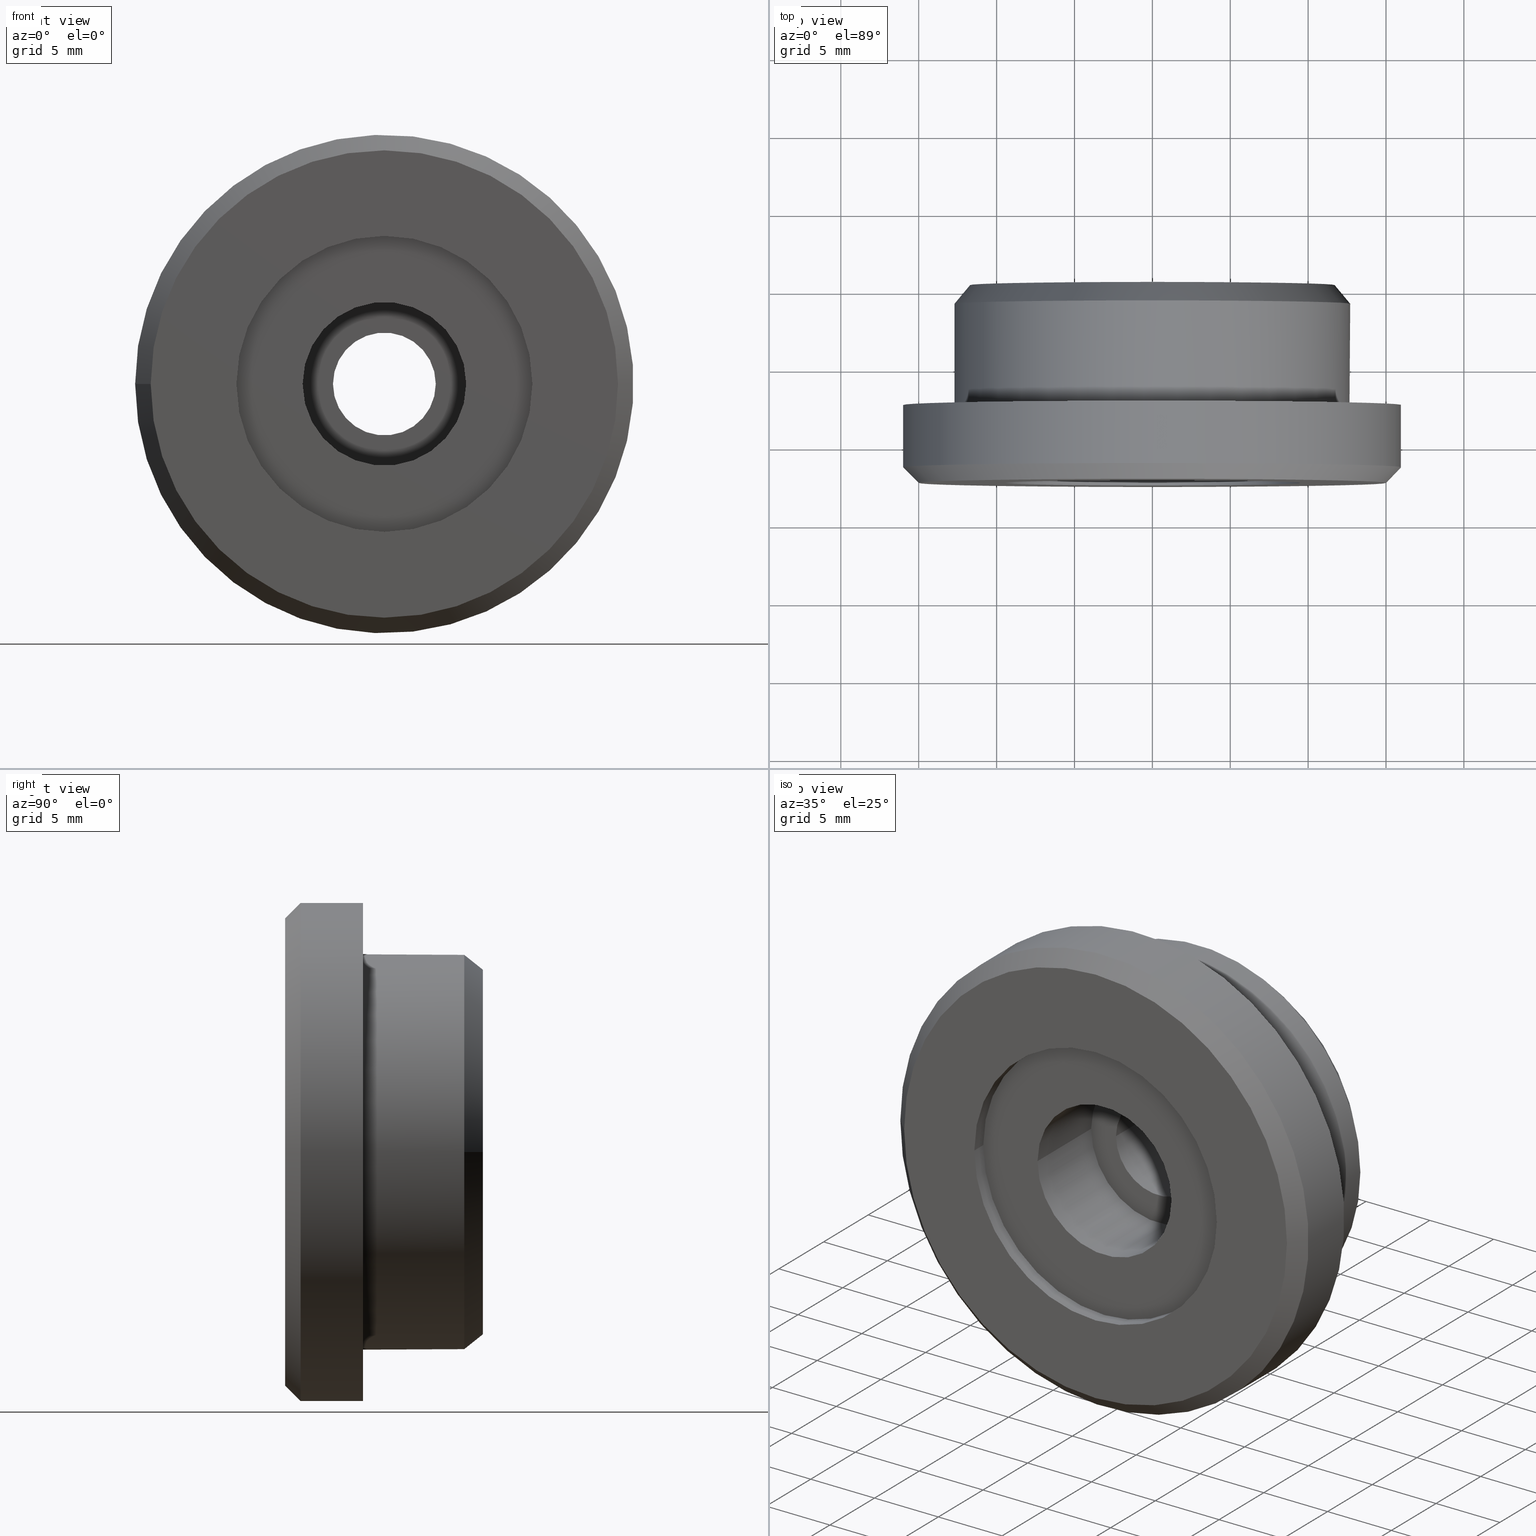
[diagram: canonical four-view strip — front | top / right | iso, engineering-drawing reading convention]
A machine part, canonical four-view strip (front | top / right | iso — engineering-drawing reading convention). The complete STEP part file that produces these views, byte-faithful:
ISO-10303-21;
HEADER;
FILE_DESCRIPTION (( 'STEP AP203' ),
    '1' );
FILE_NAME ('523755.STEP',
    '2024-11-01T08:20:52',
    ( 'Windows User' ),
    ( 'P R C' ),
    'SwSTEP 2.0',
    'SolidWorks 2020',
    '' );
FILE_SCHEMA (( 'CONFIG_CONTROL_DESIGN' ));
ENDSEC;

DATA;
#1 = EDGE_CURVE ( 'NONE', #7, #7, #230, .T. ) ;
#2 = CIRCLE ( 'NONE', #256, 6.499999999999999112 ) ;
#3 = CC_DESIGN_SECURITY_CLASSIFICATION ( #348, ( #205 ) ) ;
#4 = FACE_OUTER_BOUND ( 'NONE', #268, .T. ) ;
#5 = AXIS2_PLACEMENT_3D ( 'NONE', #332, #20, #184 ) ;
#6 = AXIS2_PLACEMENT_3D ( 'NONE', #321, #231, #261 ) ;
#7 = VERTEX_POINT ( 'NONE', #109 ) ;
#8 = ADVANCED_FACE ( 'NONE', ( #303, #338 ), #324, .T. ) ;
#9 = FACE_BOUND ( 'NONE', #354, .T. ) ;
#10 = ORIENTED_EDGE ( 'NONE', *, *, #259, .F. ) ;
#11 = DIRECTION ( 'NONE',  ( -3.414809992080329023E-17, 1.000000000000000000, 0.000000000000000000 ) ) ;
#12 = ORIENTED_EDGE ( 'NONE', *, *, #234, .F. ) ;
#13 = DIRECTION ( 'NONE',  ( 3.841661241090370459E-17, -1.000000000000000000, 4.268512490100414360E-18 ) ) ;
#14 = CARTESIAN_POINT ( 'NONE',  ( -9.500000000000076383, -12.40000000000007674, 0.000000000000000000 ) ) ;
#15 = ORIENTED_EDGE ( 'NONE', *, *, #148, .F. ) ;
#16 = CALENDAR_DATE ( 2024, 1, 11 ) ;
#17 = CC_DESIGN_PERSON_AND_ORGANIZATION_ASSIGNMENT ( #62, #172, ( #353 ) ) ;
#18 = CARTESIAN_POINT ( 'NONE',  ( 11.70000000000005436, 0.3000000000000158651, -5.122214988120266275E-18 ) ) ;
#19 = DIRECTION ( 'NONE',  ( -1.000000000000000000, -1.084202172485504681E-16, 0.000000000000000000 ) ) ;
#20 = DIRECTION ( 'NONE',  ( -3.414809992080329023E-17, 1.000000000000000000, 0.000000000000000000 ) ) ;
#21 = CARTESIAN_POINT ( 'NONE',  ( 8.499999999999964473, -11.39999999999996838, 0.000000000000000000 ) ) ;
#22 = APPROVAL_PERSON_ORGANIZATION ( #367, #116, #306 ) ;
#23 = DIRECTION ( 'NONE',  ( -3.414809992080329023E-17, 1.000000000000000000, 0.000000000000000000 ) ) ;
#24 = ADVANCED_FACE ( 'NONE', ( #102, #192 ), #244, .T. ) ;
#25 = CARTESIAN_POINT ( 'NONE',  ( -1.880790961315660451E-31, -11.40000000000000213, 0.000000000000000000 ) ) ;
#26 = AXIS2_PLACEMENT_3D ( 'NONE', #225, #311, #144 ) ;
#27 = PLANE ( 'NONE',  #123 ) ;
#28 = CARTESIAN_POINT ( 'NONE',  ( 1.707404996040190150E-16, -12.40000000000007674, 0.000000000000000000 ) ) ;
#29 = CIRCLE ( 'NONE', #76, 3.299999999999999822 ) ;
#30 = CARTESIAN_POINT ( 'NONE',  ( -6.499999999999999112, 0.3000000000000153100, 0.000000000000000000 ) ) ;
#31 = FACE_OUTER_BOUND ( 'NONE', #206, .T. ) ;
#32 = ORIENTED_EDGE ( 'NONE', *, *, #250, .T. ) ;
#33 = CARTESIAN_POINT ( 'NONE',  ( 1.084202172485501846E-16, -12.40000000000000213, 0.000000000000000000 ) ) ;
#34 = DIRECTION ( 'NONE',  ( -1.000000000000000000, 0.000000000000000000, 0.000000000000000000 ) ) ;
#35 = ADVANCED_FACE ( 'NONE', ( #156, #71 ), #302, .F. ) ;
#36 = VERTEX_POINT ( 'NONE', #95 ) ;
#37 = ORIENTED_EDGE ( 'NONE', *, *, #60, .F. ) ;
#38 = APPROVAL_ROLE ( '' ) ;
#39 = EDGE_LOOP ( 'NONE', ( #64 ) ) ;
#40 = CARTESIAN_POINT ( 'NONE',  ( 5.249999999999999112, -5.399999999999983480, 0.000000000000000000 ) ) ;
#41 = AXIS2_PLACEMENT_3D ( 'NONE', #28, #170, #319 ) ;
#42 = VERTEX_POINT ( 'NONE', #236 ) ;
#43 = DIRECTION ( 'NONE',  ( -1.000000000000000000, -3.336006684570783348E-17, 0.000000000000000000 ) ) ;
#44 = DIRECTION ( 'NONE',  ( -1.084202172485504681E-16, 1.000000000000000000, 0.000000000000000000 ) ) ;
#45 = FACE_OUTER_BOUND ( 'NONE', #356, .T. ) ;
#46 = EDGE_CURVE ( 'NONE', #226, #226, #151, .T. ) ;
#47 = CIRCLE ( 'NONE', #301, 11.70000000000005436 ) ;
#48 = SHAPE_DEFINITION_REPRESENTATION ( #298, #186 ) ;
#49 = DIRECTION ( 'NONE',  ( -3.414809992080329023E-17, 1.000000000000000000, 0.000000000000000000 ) ) ;
#50 = CYLINDRICAL_SURFACE ( 'NONE', #266, 12.69999999999999929 ) ;
#51 = DATE_TIME_ROLE ( 'creation_date' ) ;
#52 = ADVANCED_FACE ( 'NONE', ( #158, #45 ), #103, .T. ) ;
#53 = AXIS2_PLACEMENT_3D ( 'NONE', #168, #11, #314 ) ;
#54 = DIRECTION ( 'NONE',  ( -3.414809992080329023E-17, 1.000000000000000000, 0.000000000000000000 ) ) ;
#55 = CYLINDRICAL_SURFACE ( 'NONE', #41, 9.500000000000076383 ) ;
#56 = AXIS2_PLACEMENT_3D ( 'NONE', #309, #49, #98 ) ;
#57 = FACE_OUTER_BOUND ( 'NONE', #322, .T. ) ;
#58 = ORIENTED_EDGE ( 'NONE', *, *, #100, .T. ) ;
#59 = DIRECTION ( 'NONE',  ( -1.000000000000000000, 0.000000000000000000, 0.000000000000000000 ) ) ;
#60 = EDGE_CURVE ( 'NONE', #97, #97, #2, .T. ) ;
#61 = DIRECTION ( 'NONE',  ( 3.414809992080329023E-17, -1.000000000000000000, -0.000000000000000000 ) ) ;
#62 = PERSON_AND_ORGANIZATION ( #342, #69 ) ;
#63 = EDGE_LOOP ( 'NONE', ( #328 ) ) ;
#64 = ORIENTED_EDGE ( 'NONE', *, *, #161, .F. ) ;
#65 = DATE_AND_TIME ( #327, #136 ) ;
#66 = ORIENTED_EDGE ( 'NONE', *, *, #46, .T. ) ;
#67 =( NAMED_UNIT ( * ) SI_UNIT ( $, .STERADIAN. ) SOLID_ANGLE_UNIT ( ) );
#68 = DIRECTION ( 'NONE',  ( 3.414809992080329023E-17, -1.000000000000000000, 0.000000000000000000 ) ) ;
#69 = ORGANIZATION ( 'δָ��', 'δָ��', '' ) ;
#70 = VERTEX_POINT ( 'NONE', #299 ) ;
#71 = FACE_OUTER_BOUND ( 'NONE', #229, .T. ) ;
#72 = CARTESIAN_POINT ( 'NONE',  ( 2.082568731771776954E-33, -0.8999999999999305222, 2.313965257524198137E-34 ) ) ;
#73 = DATE_TIME_ROLE ( 'classification_date' ) ;
#74 = CARTESIAN_POINT ( 'NONE',  ( -2.629403693901859387E-16, 0.3000000000000155320, 0.000000000000000000 ) ) ;
#75 = CC_DESIGN_DATE_AND_TIME_ASSIGNMENT ( #187, #73, ( #348 ) ) ;
#76 = AXIS2_PLACEMENT_3D ( 'NONE', #282, #129, #160 ) ;
#77 = DIRECTION ( 'NONE',  ( -1.000000000000000000, 0.000000000000000000, 0.000000000000000000 ) ) ;
#78 = COORDINATED_UNIVERSAL_TIME_OFFSET ( 8, 0, .AHEAD. ) ;
#79 = CIRCLE ( 'NONE', #85, 12.69999999999999929 ) ;
#80 = CARTESIAN_POINT ( 'NONE',  ( 1.707404996040190150E-16, -12.40000000000007674, 0.000000000000000000 ) ) ;
#81 = ADVANCED_FACE ( 'NONE', ( #277, #220 ), #155, .T. ) ;
#82 = DIRECTION ( 'NONE',  ( 3.414809992080329023E-17, -1.000000000000000000, -0.000000000000000000 ) ) ;
#83 = APPROVAL ( #106, 'δָ��' ) ;
#84 = DIRECTION ( 'NONE',  ( 1.000000000000000000, 3.414809992080329023E-17, 0.000000000000000000 ) ) ;
#85 = AXIS2_PLACEMENT_3D ( 'NONE', #110, #200, #288 ) ;
#86 = ORIENTED_EDGE ( 'NONE', *, *, #234, .T. ) ;
#87 = FACE_BOUND ( 'NONE', #209, .T. ) ;
#88 = EDGE_LOOP ( 'NONE', ( #171 ) ) ;
#89 = CARTESIAN_POINT ( 'NONE',  ( -6.829619984160724606E-17, -5.399999999999983480, 0.000000000000000000 ) ) ;
#90 = ORIENTED_EDGE ( 'NONE', *, *, #259, .T. ) ;
#91 = CARTESIAN_POINT ( 'NONE',  ( -9.500000000000076383, -11.40000000000000036, 0.000000000000000000 ) ) ;
#92 = AXIS2_PLACEMENT_3D ( 'NONE', #25, #44, #19 ) ;
#93 = ORIENTED_EDGE ( 'NONE', *, *, #227, .F. ) ;
#94 = EDGE_LOOP ( 'NONE', ( #149 ) ) ;
#95 = CARTESIAN_POINT ( 'NONE',  ( -15.99999999999999645, -7.399999999999985256, 0.000000000000000000 ) ) ;
#96 = DIRECTION ( 'NONE',  ( -1.000000000000000000, 0.000000000000000000, 0.000000000000000000 ) ) ;
#97 = VERTEX_POINT ( 'NONE', #357 ) ;
#98 = DIRECTION ( 'NONE',  ( -1.000000000000000000, -3.414809992080329023E-17, 0.000000000000000000 ) ) ;
#99 = APPROVAL_PERSON_ORGANIZATION ( #310, #83, #313 ) ;
#100 = EDGE_CURVE ( 'NONE', #294, #294, #29, .T. ) ;
#101 = FACE_BOUND ( 'NONE', #326, .T. ) ;
#102 = FACE_BOUND ( 'NONE', #112, .T. ) ;
#103 = CYLINDRICAL_SURFACE ( 'NONE', #307, 15.99999999999999645 ) ;
#104 = AXIS2_PLACEMENT_3D ( 'NONE', #40, #68, #368 ) ;
#105 = AXIS2_PLACEMENT_3D ( 'NONE', #355, #204, #128 ) ;
#106 = APPROVAL_STATUS ( 'not_yet_approved' ) ;
#107 = PERSON_AND_ORGANIZATION_ROLE ( 'design_supplier' ) ;
#108 = LOCAL_TIME ( 16, 20, 52.00000000000000000, #78 ) ;
#109 = CARTESIAN_POINT ( 'NONE',  ( -5.249999999999999112, -5.399999999999983480, 0.000000000000000000 ) ) ;
#110 = CARTESIAN_POINT ( 'NONE',  ( -2.219626494852238640E-16, -0.8999999999999286349, 0.000000000000000000 ) ) ;
#111 = DIRECTION ( 'NONE',  ( 1.000000000000000000, 3.706674093967519044E-17, 0.000000000000000000 ) ) ;
#112 = EDGE_LOOP ( 'NONE', ( #32 ) ) ;
#113 = CYLINDRICAL_SURFACE ( 'NONE', #53, 3.299999999999999822 ) ;
#114 = CIRCLE ( 'NONE', #6, 9.500000000000076383 ) ;
#115 = ORIENTED_EDGE ( 'NONE', *, *, #1, .F. ) ;
#116 = APPROVAL ( #254, 'δָ��' ) ;
#117 = ORIENTED_EDGE ( 'NONE', *, *, #265, .T. ) ;
#118 = VERTEX_POINT ( 'NONE', #359 ) ;
#119 = ORIENTED_EDGE ( 'NONE', *, *, #227, .T. ) ;
#120 = APPROVAL_DATE_TIME ( #177, #315 ) ;
#121 = CIRCLE ( 'NONE', #337, 5.249999999999999112 ) ;
#122 = ADVANCED_FACE ( 'NONE', ( #333, #101 ), #216, .T. ) ;
#123 = AXIS2_PLACEMENT_3D ( 'NONE', #167, #346, #84 ) ;
#124 = EDGE_LOOP ( 'NONE', ( #203 ) ) ;
#125 = CARTESIAN_POINT ( 'NONE',  ( -6.259272319258516522E-31, -7.399999999999984368, 0.000000000000000000 ) ) ;
#126 = FACE_OUTER_BOUND ( 'NONE', #174, .T. ) ;
#127 = EDGE_CURVE ( 'NONE', #331, #331, #121, .T. ) ;
#128 = DIRECTION ( 'NONE',  ( 1.000000000000000000, 0.000000000000000000, 0.000000000000000000 ) ) ;
#129 = DIRECTION ( 'NONE',  ( 3.414809992080329023E-17, -1.000000000000000000, -0.000000000000000000 ) ) ;
#130 = CARTESIAN_POINT ( 'NONE',  ( -2.287922694693797149E-16, -0.7000000000000703437, 0.000000000000000000 ) ) ;
#131 = ADVANCED_FACE ( 'NONE', ( #153, #185 ), #305, .T. ) ;
#132 = DIRECTION ( 'NONE',  ( 1.000000000000000000, 4.268512490100410046E-17, 0.000000000000000000 ) ) ;
#133 = APPROVAL_DATE_TIME ( #251, #116 ) ;
#134 = MANIFOLD_SOLID_BREP ( 'NONE', #135 ) ;
#135 = CLOSED_SHELL ( 'NONE', ( #361, #24, #179, #289, #52, #219, #8, #131, #304, #202, #195, #122, #81, #35 ) ) ;
#136 = LOCAL_TIME ( 16, 20, 52.00000000000000000, #208 ) ;
#137 = SECURITY_CLASSIFICATION_LEVEL ( 'unclassified' ) ;
#138 = DIRECTION ( 'NONE',  ( -1.000000000000000000, 0.000000000000000000, 0.000000000000000000 ) ) ;
#139 = DIRECTION ( 'NONE',  ( -3.414809992080329023E-17, 1.000000000000000000, 0.000000000000000000 ) ) ;
#140 = FACE_OUTER_BOUND ( 'NONE', #63, .T. ) ;
#141 = EDGE_LOOP ( 'NONE', ( #10 ) ) ;
#142 = CYLINDRICAL_SURFACE ( 'NONE', #145, 6.499999999999999112 ) ;
#143 = EDGE_LOOP ( 'NONE', ( #93 ) ) ;
#144 = DIRECTION ( 'NONE',  ( -1.000000000000000000, -3.414809992080329023E-17, 0.000000000000000000 ) ) ;
#145 = AXIS2_PLACEMENT_3D ( 'NONE', #194, #54, #343 ) ;
#146 = ORIENTED_EDGE ( 'NONE', *, *, #278, .T. ) ;
#147 = ORIENTED_EDGE ( 'NONE', *, *, #265, .F. ) ;
#148 = EDGE_CURVE ( 'NONE', #42, #42, #165, .T. ) ;
#149 = ORIENTED_EDGE ( 'NONE', *, *, #148, .T. ) ;
#150 =( LENGTH_UNIT ( ) NAMED_UNIT ( * ) SI_UNIT ( .MILLI., .METRE. ) );
#151 = CIRCLE ( 'NONE', #157, 6.499999999999999112 ) ;
#152 = LOCAL_TIME ( 16, 20, 52.00000000000000000, #283 ) ;
#153 = FACE_BOUND ( 'NONE', #176, .T. ) ;
#154 = APPLICATION_PROTOCOL_DEFINITION ( 'international standard', 'config_control_design', 1994, #253 ) ;
#155 = PLANE ( 'NONE',  #188 ) ;
#156 = FACE_OUTER_BOUND ( 'NONE', #124, .T. ) ;
#157 = AXIS2_PLACEMENT_3D ( 'NONE', #74, #248, #369 ) ;
#158 = FACE_OUTER_BOUND ( 'NONE', #39, .T. ) ;
#159 = AXIS2_PLACEMENT_3D ( 'NONE', #350, #82, #59 ) ;
#160 = DIRECTION ( 'NONE',  ( -1.000000000000000000, -3.285461128743953148E-17, 0.000000000000000000 ) ) ;
#161 = EDGE_CURVE ( 'NONE', #36, #36, #245, .T. ) ;
#162 = DIRECTION ( 'NONE',  ( -3.414809992080329023E-17, 1.000000000000000000, 0.000000000000000000 ) ) ;
#163 = AXIS2_PLACEMENT_3D ( 'NONE', #211, #330, #181 ) ;
#164 = FACE_OUTER_BOUND ( 'NONE', #232, .T. ) ;
#165 = CIRCLE ( 'NONE', #317, 12.69999999999999929 ) ;
#166 = CIRCLE ( 'NONE', #180, 15.99999999999999645 ) ;
#167 = CARTESIAN_POINT ( 'NONE',  ( 15.00000000000003197, -12.40000000000003944, 0.000000000000000000 ) ) ;
#168 = CARTESIAN_POINT ( 'NONE',  ( 1.707404996040190150E-16, -12.40000000000007674, 0.000000000000000000 ) ) ;
#169 = ORIENTED_EDGE ( 'NONE', *, *, #127, .T. ) ;
#170 = DIRECTION ( 'NONE',  ( -3.414809992080329023E-17, 1.000000000000000000, 0.000000000000000000 ) ) ;
#171 = ORIENTED_EDGE ( 'NONE', *, *, #340, .F. ) ;
#172 = PERSON_AND_ORGANIZATION_ROLE ( 'design_owner' ) ;
#173 = LOCAL_TIME ( 16, 20, 52.00000000000000000, #270 ) ;
#174 = EDGE_LOOP ( 'NONE', ( #292 ) ) ;
#175 = PERSON_AND_ORGANIZATION ( #342, #69 ) ;
#176 = EDGE_LOOP ( 'NONE', ( #58 ) ) ;
#177 = DATE_AND_TIME ( #16, #173 ) ;
#178 = VERTEX_POINT ( 'NONE', #18 ) ;
#179 = ADVANCED_FACE ( 'NONE', ( #275, #126 ), #243, .T. ) ;
#180 = AXIS2_PLACEMENT_3D ( 'NONE', #233, #263, #316 ) ;
#181 = DIRECTION ( 'NONE',  ( -1.000000000000000000, -5.421010862427523403E-17, 0.000000000000000000 ) ) ;
#182 = CARTESIAN_POINT ( 'NONE',  ( -3.299999999999999822, -5.399999999999983480, 0.000000000000000000 ) ) ;
#183 = CC_DESIGN_PERSON_AND_ORGANIZATION_ASSIGNMENT ( #312, #191, ( #348 ) ) ;
#184 = DIRECTION ( 'NONE',  ( -1.000000000000000000, 0.000000000000000000, 0.000000000000000000 ) ) ;
#185 = FACE_OUTER_BOUND ( 'NONE', #235, .T. ) ;
#186 = ADVANCED_BREP_SHAPE_REPRESENTATION ( '523755', ( #134, #105 ), #279 ) ;
#187 = DATE_AND_TIME ( #221, #308 ) ;
#188 = AXIS2_PLACEMENT_3D ( 'NONE', #21, #218, #280 ) ;
#189 = DIRECTION ( 'NONE',  ( -3.414809992080329023E-17, 1.000000000000000000, 0.000000000000000000 ) ) ;
#190 = CC_DESIGN_APPROVAL ( #116, ( #348 ) ) ;
#191 = PERSON_AND_ORGANIZATION_ROLE ( 'classification_officer' ) ;
#192 = FACE_OUTER_BOUND ( 'NONE', #88, .T. ) ;
#193 = AXIS2_PLACEMENT_3D ( 'NONE', #89, #139, #291 ) ;
#194 = CARTESIAN_POINT ( 'NONE',  ( 1.707404996040190150E-16, -12.40000000000007674, 0.000000000000000000 ) ) ;
#195 = ADVANCED_FACE ( 'NONE', ( #267, #198 ), #55, .F. ) ;
#196 = FACE_OUTER_BOUND ( 'NONE', #141, .T. ) ;
#197 = AXIS2_PLACEMENT_3D ( 'NONE', #201, #61, #34 ) ;
#198 = FACE_OUTER_BOUND ( 'NONE', #239, .T. ) ;
#199 = ORIENTED_EDGE ( 'NONE', *, *, #340, .T. ) ;
#200 = DIRECTION ( 'NONE',  ( 3.414809992080329023E-17, -1.000000000000000000, -0.000000000000000000 ) ) ;
#201 = CARTESIAN_POINT ( 'NONE',  ( -6.829619984160724606E-17, -5.399999999999983480, 0.000000000000000000 ) ) ;
#202 = ADVANCED_FACE ( 'NONE', ( #228, #57 ), #113, .F. ) ;
#203 = ORIENTED_EDGE ( 'NONE', *, *, #127, .F. ) ;
#204 = DIRECTION ( 'NONE',  ( 0.000000000000000000, 0.000000000000000000, 1.000000000000000000 ) ) ;
#205 = PRODUCT_DEFINITION_FORMATION_WITH_SPECIFIED_SOURCE ( '�κ�', '', #353, .NOT_KNOWN. ) ;
#206 = EDGE_LOOP ( 'NONE', ( #37 ) ) ;
#207 = PRODUCT_RELATED_PRODUCT_CATEGORY ( 'detail', '', ( #353 ) ) ;
#208 = COORDINATED_UNIVERSAL_TIME_OFFSET ( 8, 0, .AHEAD. ) ;
#209 = EDGE_LOOP ( 'NONE', ( #86 ) ) ;
#210 = VERTEX_POINT ( 'NONE', #14 ) ;
#211 = CARTESIAN_POINT ( 'NONE',  ( -6.259272319258516522E-31, -7.399999999999984368, 0.000000000000000000 ) ) ;
#212 = CARTESIAN_POINT ( 'NONE',  ( -3.300000000000000266, -0.7000000000000704548, 0.000000000000000000 ) ) ;
#213 = AXIS2_PLACEMENT_3D ( 'NONE', #363, #214, #345 ) ;
#214 = DIRECTION ( 'NONE',  ( -3.414809992080329023E-17, 1.000000000000000000, 0.000000000000000000 ) ) ;
#215 = DESIGN_CONTEXT ( 'detailed design', #253, 'design' ) ;
#216 = PLANE ( 'NONE',  #104 ) ;
#217 = DATE_AND_TIME ( #285, #152 ) ;
#218 = DIRECTION ( 'NONE',  ( 3.414809992080329023E-17, -1.000000000000000000, 0.000000000000000000 ) ) ;
#219 = ADVANCED_FACE ( 'NONE', ( #31, #140 ), #142, .F. ) ;
#220 = FACE_BOUND ( 'NONE', #262, .T. ) ;
#221 = CALENDAR_DATE ( 2024, 1, 11 ) ;
#222 = PERSON_AND_ORGANIZATION ( #342, #69 ) ;
#223 = CC_DESIGN_PERSON_AND_ORGANIZATION_ASSIGNMENT ( #339, #281, ( #205 ) ) ;
#224 = CIRCLE ( 'NONE', #159, 9.500000000000076383 ) ;
#225 = CARTESIAN_POINT ( 'NONE',  ( 6.499999999999999112, 0.3000000000000150879, 0.000000000000000000 ) ) ;
#226 = VERTEX_POINT ( 'NONE', #30 ) ;
#227 = EDGE_CURVE ( 'NONE', #70, #70, #166, .T. ) ;
#228 = FACE_OUTER_BOUND ( 'NONE', #269, .T. ) ;
#229 = EDGE_LOOP ( 'NONE', ( #115 ) ) ;
#230 = CIRCLE ( 'NONE', #197, 5.249999999999999112 ) ;
#231 = DIRECTION ( 'NONE',  ( -3.414809992080329023E-17, 1.000000000000000000, 0.000000000000000000 ) ) ;
#232 = EDGE_LOOP ( 'NONE', ( #199 ) ) ;
#233 = CARTESIAN_POINT ( 'NONE',  ( 1.365923996832131856E-16, -11.40000000000000391, 0.000000000000000000 ) ) ;
#234 = EDGE_CURVE ( 'NONE', #210, #210, #114, .T. ) ;
#235 = EDGE_LOOP ( 'NONE', ( #297 ) ) ;
#236 = CARTESIAN_POINT ( 'NONE',  ( -12.69999999999999929, -7.399999999999984368, 0.000000000000000000 ) ) ;
#237 = ORIENTED_EDGE ( 'NONE', *, *, #278, .F. ) ;
#238 = PERSON_AND_ORGANIZATION_ROLE ( 'creator' ) ;
#239 = EDGE_LOOP ( 'NONE', ( #147 ) ) ;
#240 = CARTESIAN_POINT ( 'NONE',  ( -5.249999999999999112, -11.39999999999993641, 0.000000000000000000 ) ) ;
#241 = DIRECTION ( 'NONE',  ( -3.414809992080329023E-17, 1.000000000000000000, 0.000000000000000000 ) ) ;
#242 = UNCERTAINTY_MEASURE_WITH_UNIT (LENGTH_MEASURE( 1.000000000000000082E-05 ), #150, 'distance_accuracy_value', 'NONE');
#243 = PLANE ( 'NONE',  #213 ) ;
#244 = CONICAL_SURFACE ( 'NONE', #287, 12.70000000000000284, 0.6947382761967002551 ) ;
#245 = CIRCLE ( 'NONE', #163, 15.99999999999999645 ) ;
#246 = DIRECTION ( 'NONE',  ( 3.841661241090370459E-17, -1.000000000000000000, 4.268512490100414360E-18 ) ) ;
#247 = CARTESIAN_POINT ( 'NONE',  ( 1.707404996040190150E-16, -12.40000000000007674, 0.000000000000000000 ) ) ;
#248 = DIRECTION ( 'NONE',  ( 3.414809992080329023E-17, -1.000000000000000000, -0.000000000000000000 ) ) ;
#249 = APPROVAL_DATE_TIME ( #217, #83 ) ;
#250 = EDGE_CURVE ( 'NONE', #178, #178, #47, .T. ) ;
#251 = DATE_AND_TIME ( #336, #108 ) ;
#252 = PRODUCT_DEFINITION ( 'δ֪', '', #205, #215 ) ;
#253 = APPLICATION_CONTEXT ( 'configuration controlled 3d designs of mechanical parts and assemblies' ) ;
#254 = APPROVAL_STATUS ( 'not_yet_approved' ) ;
#255 = CARTESIAN_POINT ( 'NONE',  ( -4.609993489308236489E-17, 0.3000000000000154210, -5.122214988120266275E-18 ) ) ;
#256 = AXIS2_PLACEMENT_3D ( 'NONE', #130, #366, #43 ) ;
#257 = AXIS2_PLACEMENT_3D ( 'NONE', #33, #352, #284 ) ;
#258 = FACE_OUTER_BOUND ( 'NONE', #94, .T. ) ;
#259 = EDGE_CURVE ( 'NONE', #118, #118, #272, .T. ) ;
#260 = APPLICATION_CONTEXT ( 'configuration controlled 3d designs of mechanical parts and assemblies' ) ;
#261 = DIRECTION ( 'NONE',  ( -1.000000000000000000, 0.000000000000000000, 0.000000000000000000 ) ) ;
#262 = EDGE_LOOP ( 'NONE', ( #169 ) ) ;
#263 = DIRECTION ( 'NONE',  ( -3.414809992080329023E-17, 1.000000000000000000, 0.000000000000000000 ) ) ;
#264 = EDGE_LOOP ( 'NONE', ( #15 ) ) ;
#265 = EDGE_CURVE ( 'NONE', #329, #329, #224, .T. ) ;
#266 = AXIS2_PLACEMENT_3D ( 'NONE', #80, #162, #138 ) ;
#267 = FACE_OUTER_BOUND ( 'NONE', #295, .T. ) ;
#268 = EDGE_LOOP ( 'NONE', ( #358 ) ) ;
#269 = EDGE_LOOP ( 'NONE', ( #237 ) ) ;
#270 = COORDINATED_UNIVERSAL_TIME_OFFSET ( 8, 0, .AHEAD. ) ;
#271 = VERTEX_POINT ( 'NONE', #182 ) ;
#272 = CIRCLE ( 'NONE', #257, 15.00000000000003020 ) ;
#273 = CC_DESIGN_DATE_AND_TIME_ASSIGNMENT ( #65, #51, ( #252 ) ) ;
#274 = CARTESIAN_POINT ( 'NONE',  ( -12.69999999999999929, -0.8999999999999290790, 0.000000000000000000 ) ) ;
#275 = FACE_BOUND ( 'NONE', #264, .T. ) ;
#276 = VERTEX_POINT ( 'NONE', #274 ) ;
#277 = FACE_OUTER_BOUND ( 'NONE', #290, .T. ) ;
#278 = EDGE_CURVE ( 'NONE', #271, #271, #293, .T. ) ;
#279 =( GEOMETRIC_REPRESENTATION_CONTEXT ( 3 ) GLOBAL_UNCERTAINTY_ASSIGNED_CONTEXT ( ( #242 ) ) GLOBAL_UNIT_ASSIGNED_CONTEXT ( ( #150, #365, #67 ) ) REPRESENTATION_CONTEXT ( 'NONE', 'WORKASPACE' ) );
#280 = DIRECTION ( 'NONE',  ( 1.000000000000000000, 3.414809992080329023E-17, 0.000000000000000000 ) ) ;
#281 = PERSON_AND_ORGANIZATION_ROLE ( 'creator' ) ;
#282 = CARTESIAN_POINT ( 'NONE',  ( -2.287922694693797149E-16, -0.7000000000000703437, 0.000000000000000000 ) ) ;
#283 = COORDINATED_UNIVERSAL_TIME_OFFSET ( 8, 0, .AHEAD. ) ;
#284 = DIRECTION ( 'NONE',  ( -1.000000000000000000, -1.156482317317869013E-16, 0.000000000000000000 ) ) ;
#285 = CALENDAR_DATE ( 2024, 1, 11 ) ;
#286 = PLANE ( 'NONE',  #26 ) ;
#287 = AXIS2_PLACEMENT_3D ( 'NONE', #72, #246, #132 ) ;
#288 = DIRECTION ( 'NONE',  ( -1.000000000000000000, -3.414809992080329023E-17, 0.000000000000000000 ) ) ;
#289 = ADVANCED_FACE ( 'NONE', ( #9, #4 ), #286, .T. ) ;
#290 = EDGE_LOOP ( 'NONE', ( #117 ) ) ;
#291 = DIRECTION ( 'NONE',  ( -1.000000000000000000, 0.000000000000000000, 0.000000000000000000 ) ) ;
#292 = ORIENTED_EDGE ( 'NONE', *, *, #161, .T. ) ;
#293 = CIRCLE ( 'NONE', #193, 3.299999999999999822 ) ;
#294 = VERTEX_POINT ( 'NONE', #212 ) ;
#295 = EDGE_LOOP ( 'NONE', ( #12 ) ) ;
#296 = MECHANICAL_CONTEXT ( 'NONE', #260, 'mechanical' ) ;
#297 = ORIENTED_EDGE ( 'NONE', *, *, #60, .T. ) ;
#298 = PRODUCT_DEFINITION_SHAPE ( 'NONE', 'NONE',  #252 ) ;
#299 = CARTESIAN_POINT ( 'NONE',  ( -15.99999999999999645, -11.40000000000000391, 0.000000000000000000 ) ) ;
#300 = ORIENTED_EDGE ( 'NONE', *, *, #100, .F. ) ;
#301 = AXIS2_PLACEMENT_3D ( 'NONE', #255, #13, #111 ) ;
#302 = CYLINDRICAL_SURFACE ( 'NONE', #5, 5.249999999999999112 ) ;
#303 = FACE_OUTER_BOUND ( 'NONE', #143, .T. ) ;
#304 = ADVANCED_FACE ( 'NONE', ( #196, #87 ), #27, .T. ) ;
#305 = PLANE ( 'NONE',  #56 ) ;
#306 = APPROVAL_ROLE ( '' ) ;
#307 = AXIS2_PLACEMENT_3D ( 'NONE', #247, #23, #77 ) ;
#308 = LOCAL_TIME ( 16, 20, 52.00000000000000000, #334 ) ;
#309 = CARTESIAN_POINT ( 'NONE',  ( 6.499999999999999112, -0.7000000000000703437, 0.000000000000000000 ) ) ;
#310 = PERSON_AND_ORGANIZATION ( #342, #69 ) ;
#311 = DIRECTION ( 'NONE',  ( -3.414809992080329023E-17, 1.000000000000000000, 0.000000000000000000 ) ) ;
#312 = PERSON_AND_ORGANIZATION ( #342, #69 ) ;
#313 = APPROVAL_ROLE ( '' ) ;
#314 = DIRECTION ( 'NONE',  ( -1.000000000000000000, 0.000000000000000000, 0.000000000000000000 ) ) ;
#315 = APPROVAL ( #325, 'δָ��' ) ;
#316 = DIRECTION ( 'NONE',  ( -1.000000000000000000, 0.000000000000000000, 0.000000000000000000 ) ) ;
#317 = AXIS2_PLACEMENT_3D ( 'NONE', #125, #241, #96 ) ;
#318 = CC_DESIGN_APPROVAL ( #315, ( #252 ) ) ;
#319 = DIRECTION ( 'NONE',  ( -1.000000000000000000, 0.000000000000000000, 0.000000000000000000 ) ) ;
#320 = EDGE_LOOP ( 'NONE', ( #351 ) ) ;
#321 = CARTESIAN_POINT ( 'NONE',  ( 1.707404996040190150E-16, -12.40000000000007674, 0.000000000000000000 ) ) ;
#322 = EDGE_LOOP ( 'NONE', ( #300 ) ) ;
#323 = APPLICATION_PROTOCOL_DEFINITION ( 'international standard', 'config_control_design', 1994, #260 ) ;
#324 = CONICAL_SURFACE ( 'NONE', #92, 15.99999999999999645, 0.7853981633974318477 ) ;
#325 = APPROVAL_STATUS ( 'not_yet_approved' ) ;
#326 = EDGE_LOOP ( 'NONE', ( #146 ) ) ;
#327 = CALENDAR_DATE ( 2024, 1, 11 ) ;
#328 = ORIENTED_EDGE ( 'NONE', *, *, #46, .F. ) ;
#329 = VERTEX_POINT ( 'NONE', #91 ) ;
#330 = DIRECTION ( 'NONE',  ( -3.414809992080329023E-17, 1.000000000000000000, 0.000000000000000000 ) ) ;
#331 = VERTEX_POINT ( 'NONE', #240 ) ;
#332 = CARTESIAN_POINT ( 'NONE',  ( 1.707404996040190150E-16, -12.40000000000007674, 0.000000000000000000 ) ) ;
#333 = FACE_OUTER_BOUND ( 'NONE', #320, .T. ) ;
#334 = COORDINATED_UNIVERSAL_TIME_OFFSET ( 8, 0, .AHEAD. ) ;
#335 = CARTESIAN_POINT ( 'NONE',  ( 1.365923996832108929E-16, -11.39999999999993641, 0.000000000000000000 ) ) ;
#336 = CALENDAR_DATE ( 2024, 1, 11 ) ;
#337 = AXIS2_PLACEMENT_3D ( 'NONE', #335, #189, #360 ) ;
#338 = FACE_BOUND ( 'NONE', #347, .T. ) ;
#339 = PERSON_AND_ORGANIZATION ( #342, #69 ) ;
#340 = EDGE_CURVE ( 'NONE', #276, #276, #79, .T. ) ;
#341 = APPROVAL_PERSON_ORGANIZATION ( #175, #315, #38 ) ;
#342 = PERSON ( 'δָ��', 'δָ��', 'δָ��', ('δָ��'), ('δָ��'), ('δָ��') ) ;
#343 = DIRECTION ( 'NONE',  ( -1.000000000000000000, 0.000000000000000000, 0.000000000000000000 ) ) ;
#344 = CC_DESIGN_PERSON_AND_ORGANIZATION_ASSIGNMENT ( #222, #107, ( #205 ) ) ;
#345 = DIRECTION ( 'NONE',  ( -1.000000000000000000, -3.414809992080329023E-17, 0.000000000000000000 ) ) ;
#346 = DIRECTION ( 'NONE',  ( 3.414809992080329023E-17, -1.000000000000000000, 0.000000000000000000 ) ) ;
#347 = EDGE_LOOP ( 'NONE', ( #90 ) ) ;
#348 = SECURITY_CLASSIFICATION ( '', '', #137 ) ;
#349 = CC_DESIGN_PERSON_AND_ORGANIZATION_ASSIGNMENT ( #362, #238, ( #252 ) ) ;
#350 = CARTESIAN_POINT ( 'NONE',  ( 1.365923996832130623E-16, -11.40000000000000036, 0.000000000000000000 ) ) ;
#351 = ORIENTED_EDGE ( 'NONE', *, *, #1, .T. ) ;
#352 = DIRECTION ( 'NONE',  ( -1.084202172485504681E-16, 1.000000000000000000, 0.000000000000000000 ) ) ;
#353 = PRODUCT ( '523755', '523755', '', ( #296 ) ) ;
#354 = EDGE_LOOP ( 'NONE', ( #66 ) ) ;
#355 = CARTESIAN_POINT ( 'NONE',  ( 0.000000000000000000, 0.000000000000000000, 0.000000000000000000 ) ) ;
#356 = EDGE_LOOP ( 'NONE', ( #119 ) ) ;
#357 = CARTESIAN_POINT ( 'NONE',  ( -6.499999999999999112, -0.7000000000000705658, 0.000000000000000000 ) ) ;
#358 = ORIENTED_EDGE ( 'NONE', *, *, #250, .F. ) ;
#359 = CARTESIAN_POINT ( 'NONE',  ( -15.00000000000003020, -12.40000000000000391, 0.000000000000000000 ) ) ;
#360 = DIRECTION ( 'NONE',  ( -1.000000000000000000, 0.000000000000000000, 0.000000000000000000 ) ) ;
#361 = ADVANCED_FACE ( 'NONE', ( #164, #258 ), #50, .T. ) ;
#362 = PERSON_AND_ORGANIZATION ( #342, #69 ) ;
#363 = CARTESIAN_POINT ( 'NONE',  ( 12.69999999999999929, -7.399999999999983480, 0.000000000000000000 ) ) ;
#364 = CC_DESIGN_APPROVAL ( #83, ( #205 ) ) ;
#365 =( NAMED_UNIT ( * ) PLANE_ANGLE_UNIT ( ) SI_UNIT ( $, .RADIAN. ) );
#366 = DIRECTION ( 'NONE',  ( -3.414809992080329023E-17, 1.000000000000000000, 0.000000000000000000 ) ) ;
#367 = PERSON_AND_ORGANIZATION ( #342, #69 ) ;
#368 = DIRECTION ( 'NONE',  ( 1.000000000000000000, 3.414809992080329023E-17, 0.000000000000000000 ) ) ;
#369 = DIRECTION ( 'NONE',  ( -1.000000000000000000, -3.336006684570783348E-17, 0.000000000000000000 ) ) ;
ENDSEC;
END-ISO-10303-21;
